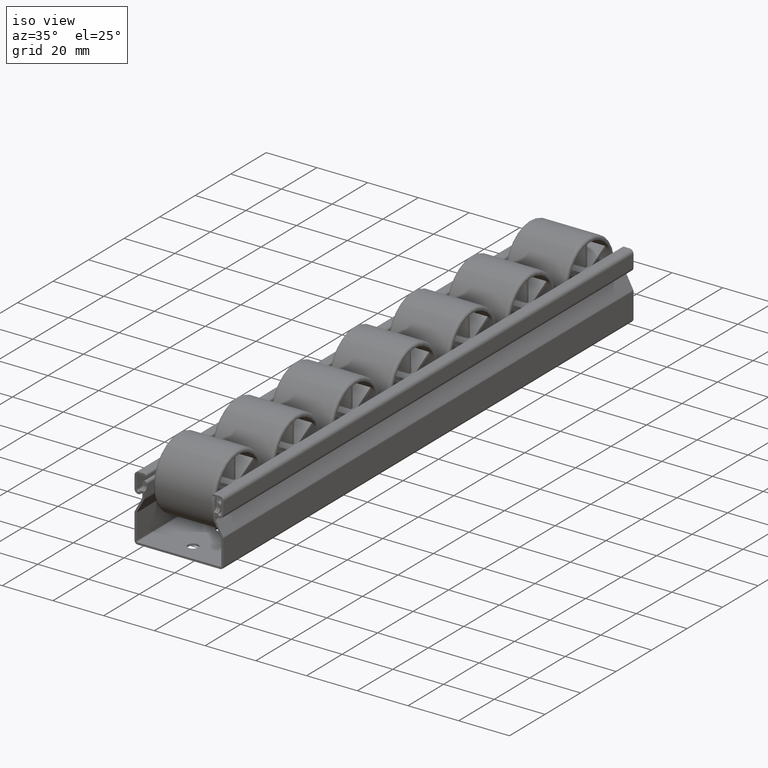
[diagram: clean part render]
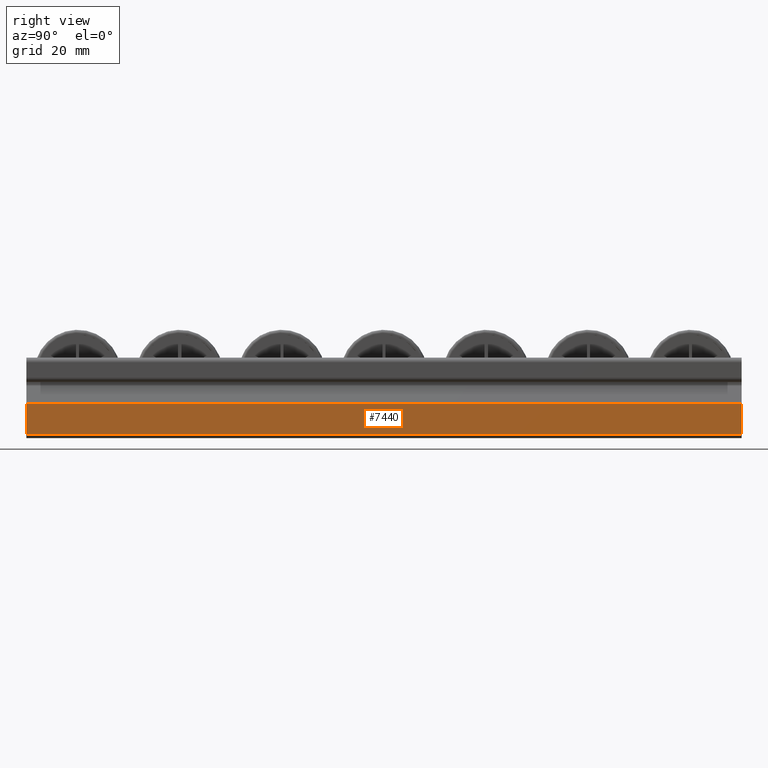
[diagram: tour spotlight — one face highlighted and labeled with its STEP entity id]
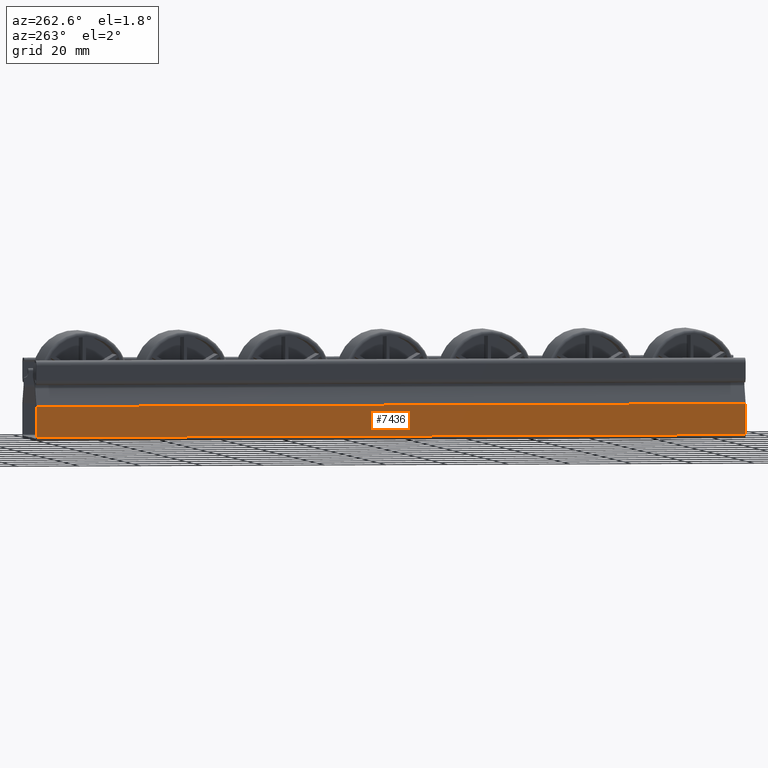
[diagram: tour spotlight — one face highlighted and labeled with its STEP entity id]
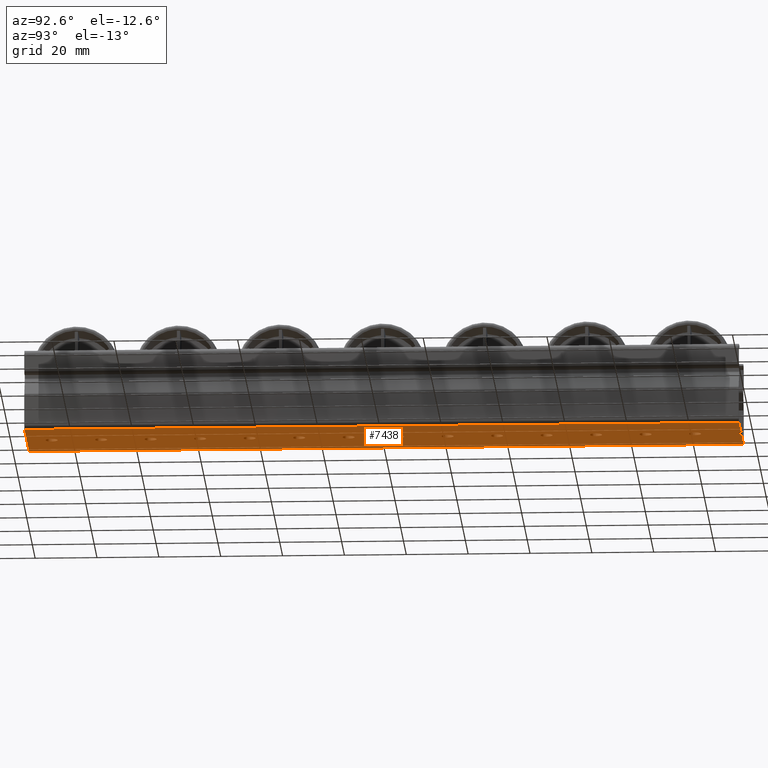
[diagram: tour spotlight — one face highlighted and labeled with its STEP entity id]
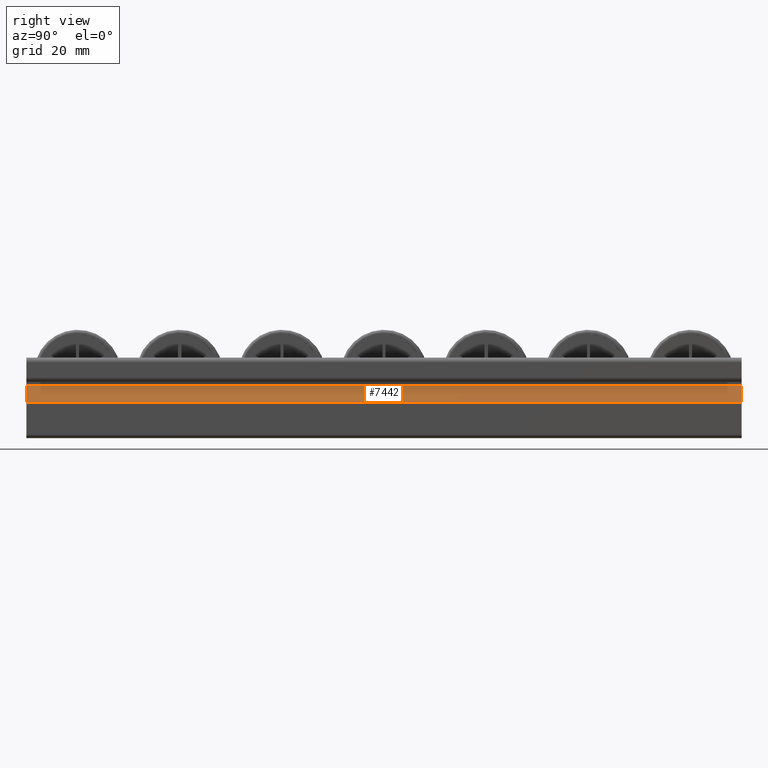
[diagram: tour spotlight — one face highlighted and labeled with its STEP entity id]
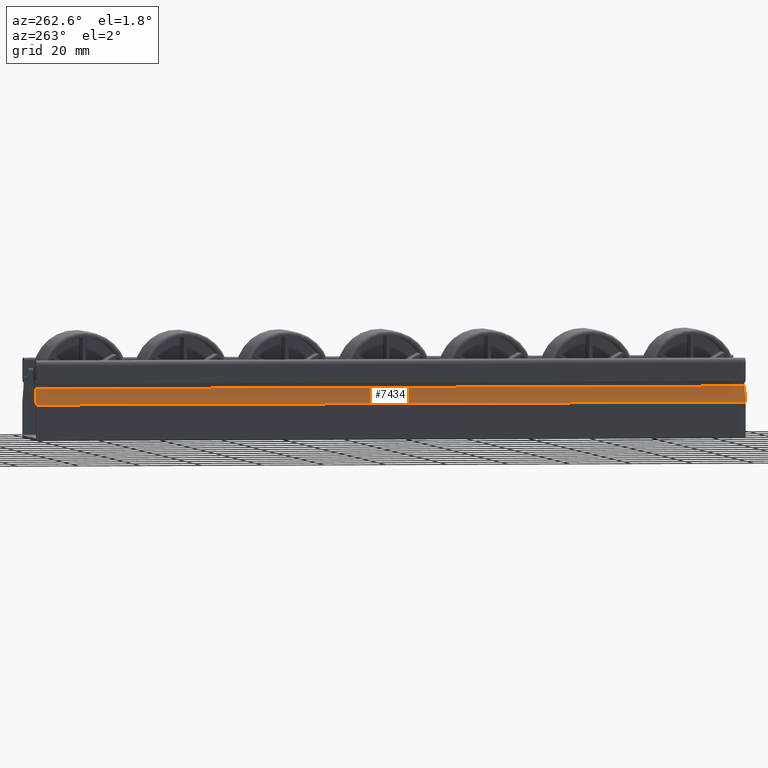
[diagram: tour spotlight — one face highlighted and labeled with its STEP entity id]
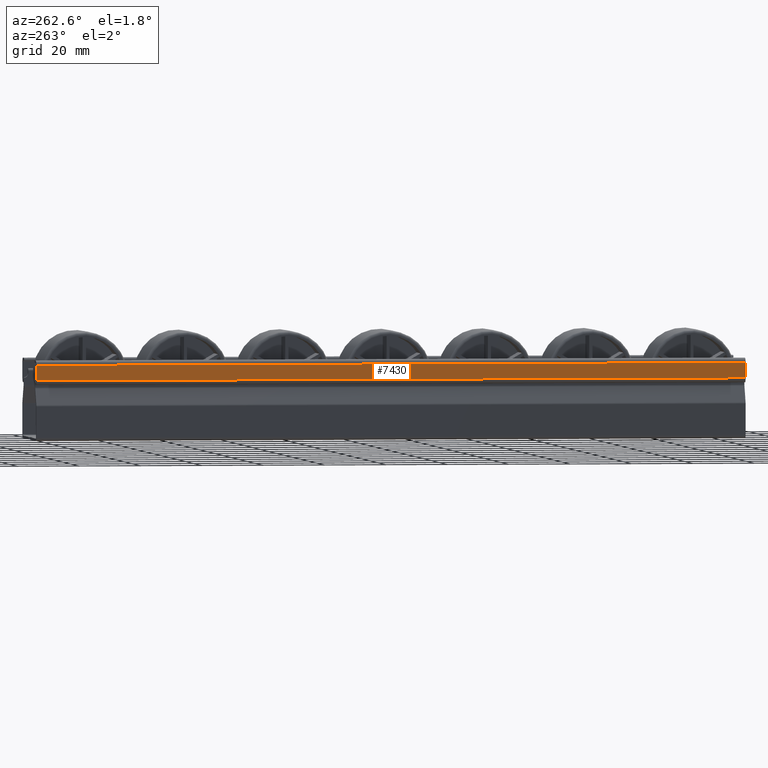
[diagram: tour spotlight — one face highlighted and labeled with its STEP entity id]
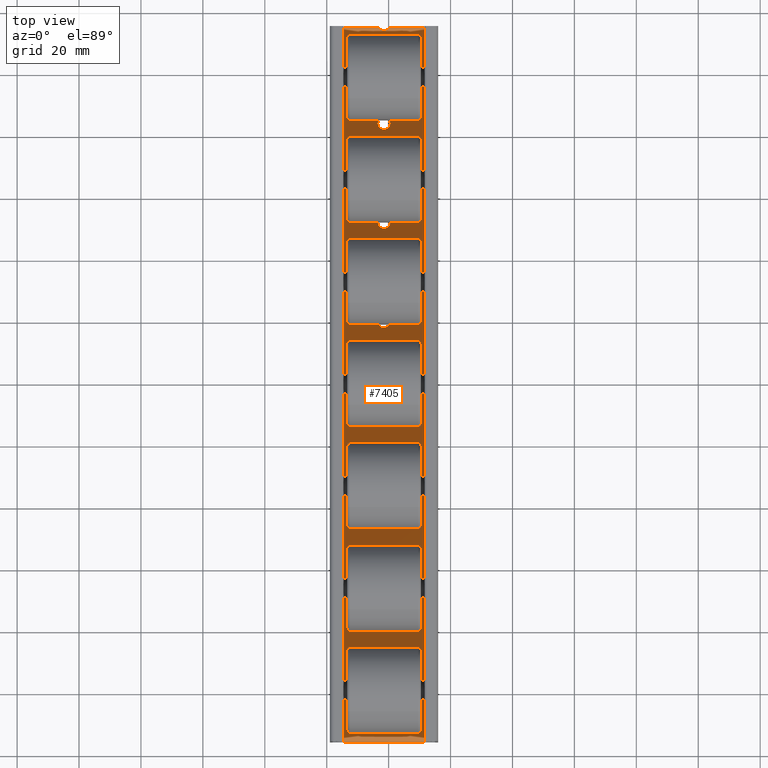
[diagram: tour spotlight — one face highlighted and labeled with its STEP entity id]
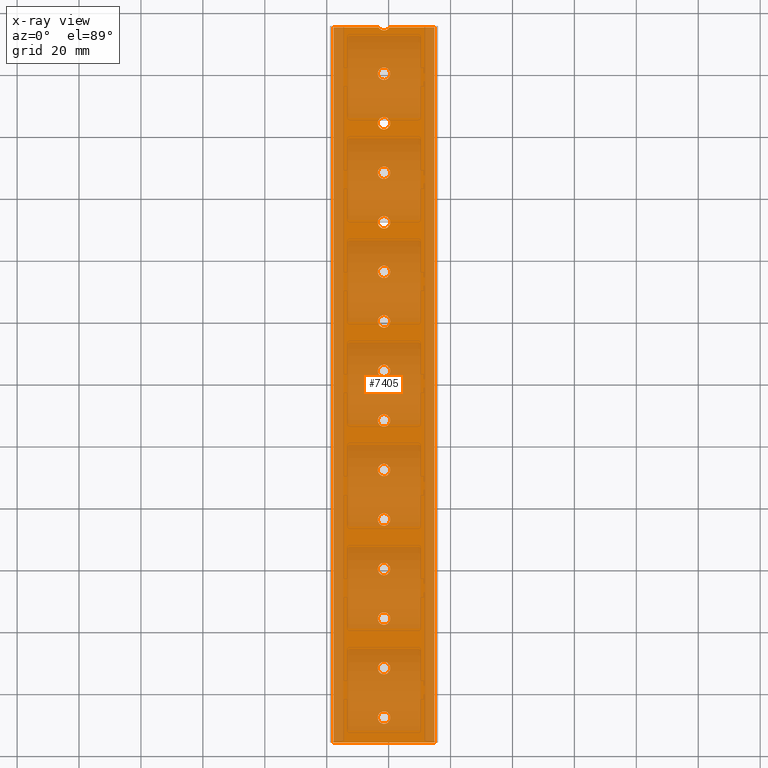
[diagram: x-ray of the same camera — body ghosted, this tour face saturated]
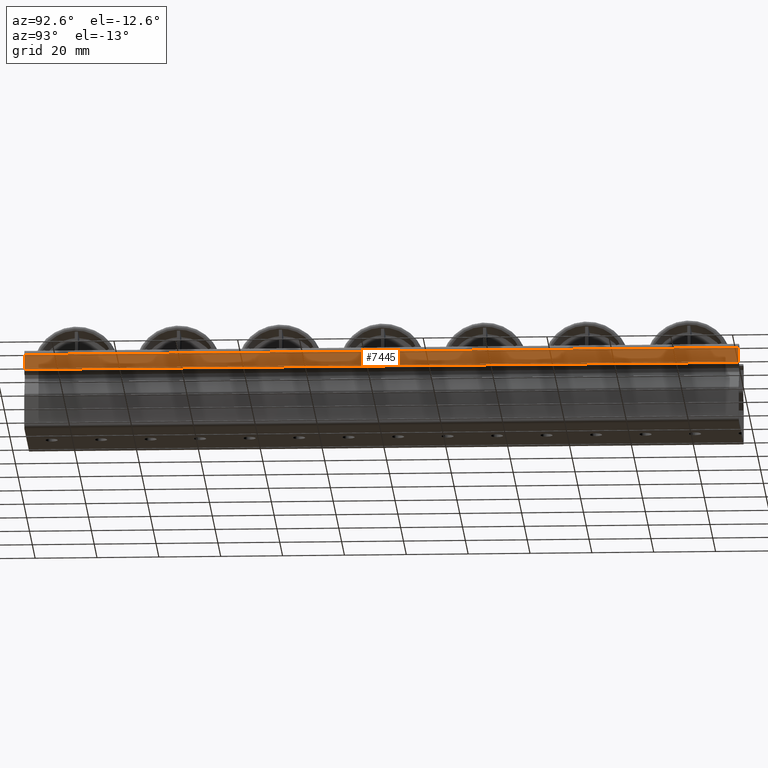
[diagram: tour spotlight — one face highlighted and labeled with its STEP entity id]
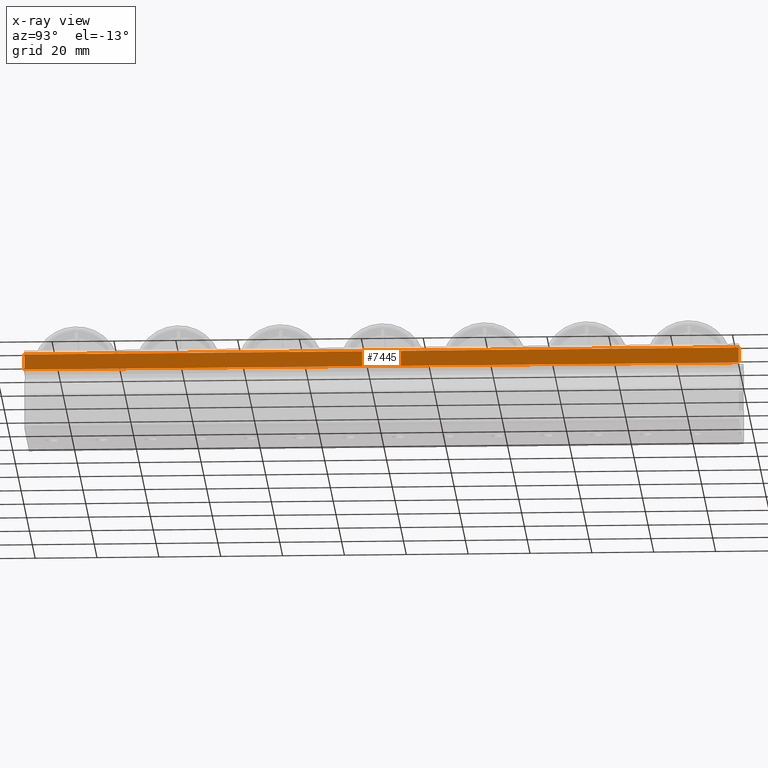
[diagram: x-ray of the same camera — body ghosted, this tour face saturated]
A machine part: a face-by-face anatomy tour. The part has 749 B-rep faces; the first image is the clean iso view, then the 8 largest visible faces are spotlighted one at a time (largest first), each with its STEP entity span.

Face 1 — right view, entity #7440. In plain terms, the highlighted planar face has unit normal (1, 0, 0).
Definition (entity closure, byte-faithful):
#572=FACE_OUTER_BOUND('',#973,.T.);
#973=EDGE_LOOP('',(#6601,#6602,#6603,#6604));
#1814=LINE('',#11824,#2510);
#2029=LINE('',#12270,#2725);
#2074=LINE('',#12461,#2770);
#2075=LINE('',#12463,#2771);
#2510=VECTOR('',#9427,10.);
#2725=VECTOR('',#9962,10.);
#2770=VECTOR('',#10195,231.);
#2771=VECTOR('',#10198,231.);
#3375=VERTEX_POINT('',#11821);
#3376=VERTEX_POINT('',#11823);
#3446=VERTEX_POINT('',#12267);
#3447=VERTEX_POINT('',#12269);
#4223=EDGE_CURVE('',#3375,#3376,#1814,.T.);
#4473=EDGE_CURVE('',#3446,#3447,#2029,.T.);
#4562=EDGE_CURVE('',#3446,#3376,#2074,.T.);
#4563=EDGE_CURVE('',#3447,#3375,#2075,.T.);
#6601=ORIENTED_EDGE('',*,*,#4473,.F.);
#6602=ORIENTED_EDGE('',*,*,#4562,.T.);
#6603=ORIENTED_EDGE('',*,*,#4223,.F.);
#6604=ORIENTED_EDGE('',*,*,#4563,.F.);
#7096=PLANE('',#8161);
#7440=ADVANCED_FACE('',(#572),#7096,.T.);
#8161=AXIS2_PLACEMENT_3D('',#12462,#10196,#10197);
#9427=DIRECTION('',(5.55111512312577E-16,-1.,0.));
#9962=DIRECTION('',(-5.55111512312577E-16,1.,0.));
#10195=DIRECTION('',(0.,0.,1.));
#10196=DIRECTION('center_axis',(-1.,-5.55111512312577E-16,0.));
#10197=DIRECTION('ref_axis',(5.32907051820075E-16,-1.,0.));
#10198=DIRECTION('',(0.,0.,1.));
#11821=CARTESIAN_POINT('',(-9.46144776632026,-0.466430168903642,231.));
#11823=CARTESIAN_POINT('',(-9.46144776632025,-10.4664301689037,231.));
#11824=CARTESIAN_POINT('',(-9.46144776632025,-10.4664301689037,231.));
#12267=CARTESIAN_POINT('',(-9.46144776632025,-10.4664301689037,0.));
#12269=CARTESIAN_POINT('',(-9.46144776632026,-0.466430168903642,0.));
#12270=CARTESIAN_POINT('',(-9.46144776632025,-10.4664301689037,0.));
#12461=CARTESIAN_POINT('',(-9.46144776632025,-10.4664301689037,0.));
#12462=CARTESIAN_POINT('Origin',(-9.46144776632026,-0.466430168903642,0.));
#12463=CARTESIAN_POINT('',(-9.46144776632026,-0.466430168903642,0.));

Face 2 — auxiliary view, entity #7436. In plain terms, the highlighted planar face has unit normal (-1, -0, -0).
Definition (entity closure, byte-faithful):
#568=FACE_OUTER_BOUND('',#955,.T.);
#955=EDGE_LOOP('',(#6569,#6570,#6571,#6572));
#2027=LINE('',#12262,#2723);
#2041=LINE('',#12385,#2737);
#2070=LINE('',#12453,#2766);
#2071=LINE('',#12455,#2767);
#2723=VECTOR('',#9956,10.);
#2737=VECTOR('',#10084,10.);
#2766=VECTOR('',#10183,231.);
#2767=VECTOR('',#10186,231.);
#3442=VERTEX_POINT('',#12259);
#3443=VERTEX_POINT('',#12261);
#3494=VERTEX_POINT('',#12382);
#3495=VERTEX_POINT('',#12384);
#4469=EDGE_CURVE('',#3442,#3443,#2027,.T.);
#4525=EDGE_CURVE('',#3494,#3495,#2041,.T.);
#4558=EDGE_CURVE('',#3442,#3495,#2070,.T.);
#4559=EDGE_CURVE('',#3443,#3494,#2071,.T.);
#6569=ORIENTED_EDGE('',*,*,#4469,.F.);
#6570=ORIENTED_EDGE('',*,*,#4558,.T.);
#6571=ORIENTED_EDGE('',*,*,#4525,.F.);
#6572=ORIENTED_EDGE('',*,*,#4559,.F.);
#7094=PLANE('',#8157);
#7436=ADVANCED_FACE('',(#568),#7094,.T.);
#8157=AXIS2_PLACEMENT_3D('',#12454,#10184,#10185);
#9956=DIRECTION('',(-1.77635683940025E-15,-1.,0.));
#10084=DIRECTION('',(1.77635683940025E-15,1.,0.));
#10183=DIRECTION('',(0.,0.,1.));
#10184=DIRECTION('center_axis',(1.,-1.77635683940025E-15,0.));
#10185=DIRECTION('ref_axis',(1.77635683940025E-15,1.,0.));
#10186=DIRECTION('',(0.,0.,1.));
#12259=CARTESIAN_POINT('',(25.5385522336796,-0.466430168903662,0.));
#12261=CARTESIAN_POINT('',(25.5385522336796,-10.4664301689037,0.));
#12262=CARTESIAN_POINT('',(25.5385522336796,-0.466430168903662,0.));
#12382=CARTESIAN_POINT('',(25.5385522336796,-10.4664301689037,231.));
#12384=CARTESIAN_POINT('',(25.5385522336796,-0.466430168903662,231.));
#12385=CARTESIAN_POINT('',(25.5385522336796,-0.466430168903662,231.));
#12453=CARTESIAN_POINT('',(25.5385522336796,-0.466430168903662,0.));
#12454=CARTESIAN_POINT('Origin',(25.5385522336796,-10.4664301689037,0.));
#12455=CARTESIAN_POINT('',(25.5385522336796,-10.4664301689037,0.));

Face 3 — auxiliary view, entity #7438. In plain terms, the highlighted planar face has unit normal (0, -0, -1).
Definition (entity closure, byte-faithful):
#96=FACE_BOUND('',#958,.T.);
#97=FACE_BOUND('',#959,.T.);
#98=FACE_BOUND('',#960,.T.);
#99=FACE_BOUND('',#961,.T.);
#100=FACE_BOUND('',#962,.T.);
#101=FACE_BOUND('',#963,.T.);
#102=FACE_BOUND('',#964,.T.);
#103=FACE_BOUND('',#965,.T.);
#104=FACE_BOUND('',#966,.T.);
#105=FACE_BOUND('',#967,.T.);
#106=FACE_BOUND('',#968,.T.);
#107=FACE_BOUND('',#969,.T.);
#108=FACE_BOUND('',#970,.T.);
#109=FACE_BOUND('',#971,.T.);
#570=FACE_OUTER_BOUND('',#957,.T.);
#957=EDGE_LOOP('',(#6577,#6578,#6579,#6580,#6581,#6582));
#958=EDGE_LOOP('',(#6583));
#959=EDGE_LOOP('',(#6584));
#960=EDGE_LOOP('',(#6585));
#961=EDGE_LOOP('',(#6586));
#962=EDGE_LOOP('',(#6587));
#963=EDGE_LOOP('',(#6588));
#964=EDGE_LOOP('',(#6589));
#965=EDGE_LOOP('',(#6590));
#966=EDGE_LOOP('',(#6591));
#967=EDGE_LOOP('',(#6592));
#968=EDGE_LOOP('',(#6593));
#969=EDGE_LOOP('',(#6594));
#970=EDGE_LOOP('',(#6595));
#971=EDGE_LOOP('',(#6596));
#1382=CIRCLE('',#8076,2.);
#1385=CIRCLE('',#8080,2.);
#1387=CIRCLE('',#8083,2.);
#1389=CIRCLE('',#8086,2.);
#1391=CIRCLE('',#8089,2.);
#1393=CIRCLE('',#8092,2.);
#1395=CIRCLE('',#8095,2.);
#1397=CIRCLE('',#8098,2.);
#1399=CIRCLE('',#8101,2.);
#1401=CIRCLE('',#8104,2.);
#1403=CIRCLE('',#8107,2.);
#1405=CIRCLE('',#8110,2.);
#1407=CIRCLE('',#8113,2.);
#1409=CIRCLE('',#8116,2.);
#1417=CIRCLE('',#8127,2.);
#1815=LINE('',#11828,#2511);
#2028=LINE('',#12266,#2724);
#2040=LINE('',#12381,#2736);
#2072=LINE('',#12457,#2768);
#2073=LINE('',#12459,#2769);
#2511=VECTOR('',#9430,14.545198360247);
#2724=VECTOR('',#9959,32.5544983356316);
#2736=VECTOR('',#10081,14.5451983602469);
#2768=VECTOR('',#10189,231.);
#2769=VECTOR('',#10192,231.);
#3377=VERTEX_POINT('',#11825);
#3378=VERTEX_POINT('',#11827);
#3444=VERTEX_POINT('',#12263);
#3445=VERTEX_POINT('',#12265);
#3460=VERTEX_POINT('',#12298);
#3463=VERTEX_POINT('',#12306);
#3465=VERTEX_POINT('',#12311);
#3467=VERTEX_POINT('',#12316);
#3469=VERTEX_POINT('',#12321);
#3471=VERTEX_POINT('',#12326);
#3473=VERTEX_POINT('',#12331);
#3475=VERTEX_POINT('',#12336);
#3477=VERTEX_POINT('',#12341);
#3479=VERTEX_POINT('',#12346);
#3481=VERTEX_POINT('',#12351);
#3483=VERTEX_POINT('',#12356);
#3485=VERTEX_POINT('',#12361);
#3487=VERTEX_POINT('',#12366);
#3493=VERTEX_POINT('',#12380);
#3499=VERTEX_POINT('',#12397);
#4225=EDGE_CURVE('',#3377,#3378,#1815,.T.);
#4471=EDGE_CURVE('',#3444,#3445,#2028,.T.);
#4488=EDGE_CURVE('',#3460,#3378,#1382,.T.);
#4492=EDGE_CURVE('',#3463,#3463,#1385,.T.);
#4494=EDGE_CURVE('',#3465,#3465,#1387,.T.);
#4496=EDGE_CURVE('',#3467,#3467,#1389,.T.);
#4498=EDGE_CURVE('',#3469,#3469,#1391,.T.);
#4500=EDGE_CURVE('',#3471,#3471,#1393,.T.);
#4502=EDGE_CURVE('',#3473,#3473,#1395,.T.);
#4504=EDGE_CURVE('',#3475,#3475,#1397,.T.);
#4506=EDGE_CURVE('',#3477,#3477,#1399,.T.);
#4508=EDGE_CURVE('',#3479,#3479,#1401,.T.);
#4510=EDGE_CURVE('',#3481,#3481,#1403,.T.);
#4512=EDGE_CURVE('',#3483,#3483,#1405,.T.);
#4514=EDGE_CURVE('',#3485,#3485,#1407,.T.);
#4516=EDGE_CURVE('',#3487,#3487,#1409,.T.);
#4523=EDGE_CURVE('',#3460,#3493,#2040,.T.);
#4532=EDGE_CURVE('',#3499,#3499,#1417,.T.);
#4560=EDGE_CURVE('',#3444,#3493,#2072,.T.);
#4561=EDGE_CURVE('',#3445,#3377,#2073,.T.);
#6577=ORIENTED_EDGE('',*,*,#4488,.T.);
#6578=ORIENTED_EDGE('',*,*,#4225,.F.);
#6579=ORIENTED_EDGE('',*,*,#4561,.F.);
#6580=ORIENTED_EDGE('',*,*,#4471,.F.);
#6581=ORIENTED_EDGE('',*,*,#4560,.T.);
#6582=ORIENTED_EDGE('',*,*,#4523,.F.);
#6583=ORIENTED_EDGE('',*,*,#4492,.T.);
#6584=ORIENTED_EDGE('',*,*,#4494,.T.);
#6585=ORIENTED_EDGE('',*,*,#4496,.T.);
#6586=ORIENTED_EDGE('',*,*,#4498,.T.);
#6587=ORIENTED_EDGE('',*,*,#4500,.T.);
#6588=ORIENTED_EDGE('',*,*,#4502,.T.);
#6589=ORIENTED_EDGE('',*,*,#4504,.T.);
#6590=ORIENTED_EDGE('',*,*,#4506,.T.);
#6591=ORIENTED_EDGE('',*,*,#4508,.T.);
#6592=ORIENTED_EDGE('',*,*,#4510,.T.);
#6593=ORIENTED_EDGE('',*,*,#4512,.T.);
#6594=ORIENTED_EDGE('',*,*,#4514,.T.);
#6595=ORIENTED_EDGE('',*,*,#4516,.T.);
#6596=ORIENTED_EDGE('',*,*,#4532,.T.);
#7095=PLANE('',#8159);
#7438=ADVANCED_FACE('',(#570,#96,#97,#98,#99,#100,#101,#102,#103,#104,#105,
#106,#107,#108,#109),#7095,.T.);
#8076=AXIS2_PLACEMENT_3D('',#12299,#9987,#9988);
#8080=AXIS2_PLACEMENT_3D('',#12307,#9996,#9997);
#8083=AXIS2_PLACEMENT_3D('',#12312,#10002,#10003);
#8086=AXIS2_PLACEMENT_3D('',#12317,#10008,#10009);
#8089=AXIS2_PLACEMENT_3D('',#12322,#10014,#10015);
#8092=AXIS2_PLACEMENT_3D('',#12327,#10020,#10021);
#8095=AXIS2_PLACEMENT_3D('',#12332,#10026,#10027);
#8098=AXIS2_PLACEMENT_3D('',#12337,#10032,#10033);
#8101=AXIS2_PLACEMENT_3D('',#12342,#10038,#10039);
#8104=AXIS2_PLACEMENT_3D('',#12347,#10044,#10045);
#8107=AXIS2_PLACEMENT_3D('',#12352,#10050,#10051);
#8110=AXIS2_PLACEMENT_3D('',#12357,#10056,#10057);
#8113=AXIS2_PLACEMENT_3D('',#12362,#10062,#10063);
#8116=AXIS2_PLACEMENT_3D('',#12367,#10068,#10069);
#8127=AXIS2_PLACEMENT_3D('',#12398,#10098,#10099);
#8159=AXIS2_PLACEMENT_3D('',#12458,#10190,#10191);
#9430=DIRECTION('',(1.,6.82070424295246E-16,0.));
#9959=DIRECTION('',(-1.,-6.82070424295246E-16,0.));
#9987=DIRECTION('center_axis',(-6.82070424295246E-16,1.,0.));
#9988=DIRECTION('ref_axis',(1.,6.82070424295246E-16,0.));
#9996=DIRECTION('center_axis',(-6.82070424295246E-16,1.,0.));
#9997=DIRECTION('ref_axis',(1.,6.82070424295246E-16,0.));
#10002=DIRECTION('center_axis',(-6.82070424295246E-16,1.,0.));
#10003=DIRECTION('ref_axis',(1.,6.82070424295246E-16,0.));
#10008=DIRECTION('center_axis',(-6.82070424295246E-16,1.,0.));
#10009=DIRECTION('ref_axis',(1.,6.82070424295246E-16,0.));
#10014=DIRECTION('center_axis',(-6.82070424295246E-16,1.,0.));
#10015=DIRECTION('ref_axis',(1.,6.82070424295246E-16,0.));
#10020=DIRECTION('center_axis',(-6.82070424295246E-16,1.,0.));
#10021=DIRECTION('ref_axis',(1.,6.82070424295246E-16,0.));
#10026=DIRECTION('center_axis',(-6.82070424295246E-16,1.,0.));
#10027=DIRECTION('ref_axis',(1.,6.82070424295246E-16,0.));
#10032=DIRECTION('center_axis',(-6.82070424295246E-16,1.,0.));
#10033=DIRECTION('ref_axis',(1.,6.82070424295246E-16,0.));
#10038=DIRECTION('center_axis',(-6.82070424295246E-16,1.,0.));
#10039=DIRECTION('ref_axis',(1.,6.82070424295246E-16,0.));
#10044=DIRECTION('center_axis',(-6.82070424295246E-16,1.,0.));
#10045=DIRECTION('ref_axis',(1.,6.82070424295246E-16,0.));
#10050=DIRECTION('center_axis',(-6.82070424295246E-16,1.,0.));
#10051=DIRECTION('ref_axis',(1.,6.82070424295246E-16,0.));
#10056=DIRECTION('center_axis',(-6.82070424295246E-16,1.,0.));
#10057=DIRECTION('ref_axis',(1.,6.82070424295246E-16,0.));
#10062=DIRECTION('center_axis',(-6.82070424295246E-16,1.,0.));
#10063=DIRECTION('ref_axis',(1.,6.82070424295246E-16,0.));
#10068=DIRECTION('center_axis',(-6.82070424295246E-16,1.,0.));
#10069=DIRECTION('ref_axis',(1.,6.82070424295246E-16,0.));
#10081=DIRECTION('',(1.,6.82070424295246E-16,0.));
#10098=DIRECTION('center_axis',(-6.82070424295246E-16,1.,0.));
#10099=DIRECTION('ref_axis',(1.,6.82070424295246E-16,0.));
#10189=DIRECTION('',(0.,0.,1.));
#10190=DIRECTION('center_axis',(6.82070424295246E-16,-1.,0.));
#10191=DIRECTION('ref_axis',(1.,7.105427357601E-16,0.));
#10192=DIRECTION('',(0.,0.,1.));
#11825=CARTESIAN_POINT('',(-8.23869693413613,-11.6891810010878,231.));
#11827=CARTESIAN_POINT('',(6.30650142611088,-11.6891810010878,231.));
#11828=CARTESIAN_POINT('',(24.3158014014955,-11.6891810010878,231.));
#12263=CARTESIAN_POINT('',(24.3158014014955,-11.6891810010878,0.));
#12265=CARTESIAN_POINT('',(-8.23869693413613,-11.6891810010878,0.));
#12266=CARTESIAN_POINT('',(24.3158014014955,-11.6891810010878,0.));
#12298=CARTESIAN_POINT('',(9.77060304124862,-11.6891810010878,231.));
#12299=CARTESIAN_POINT('Origin',(8.03855223367975,-11.6891810010878,232.));
#12306=CARTESIAN_POINT('',(10.0385522336798,-11.6891810010878,216.));
#12307=CARTESIAN_POINT('Origin',(8.03855223367975,-11.6891810010878,216.));
#12311=CARTESIAN_POINT('',(10.0385522336798,-11.6891810010878,200.));
#12312=CARTESIAN_POINT('Origin',(8.03855223367975,-11.6891810010878,200.));
#12316=CARTESIAN_POINT('',(10.0385522336798,-11.6891810010878,184.));
#12317=CARTESIAN_POINT('Origin',(8.03855223367975,-11.6891810010878,184.));
#12321=CARTESIAN_POINT('',(10.0385522336798,-11.6891810010878,168.));
#12322=CARTESIAN_POINT('Origin',(8.03855223367975,-11.6891810010878,168.));
#12326=CARTESIAN_POINT('',(10.0385522336798,-11.6891810010878,152.));
#12327=CARTESIAN_POINT('Origin',(8.03855223367975,-11.6891810010878,152.));
#12331=CARTESIAN_POINT('',(10.0385522336798,-11.6891810010878,136.));
#12332=CARTESIAN_POINT('Origin',(8.03855223367975,-11.6891810010878,136.));
#12336=CARTESIAN_POINT('',(10.0385522336798,-11.6891810010878,120.));
#12337=CARTESIAN_POINT('Origin',(8.03855223367975,-11.6891810010878,120.));
#12341=CARTESIAN_POINT('',(10.0385522336798,-11.6891810010878,104.));
#12342=CARTESIAN_POINT('Origin',(8.03855223367975,-11.6891810010878,104.));
#12346=CARTESIAN_POINT('',(10.0385522336798,-11.6891810010878,88.));
#12347=CARTESIAN_POINT('Origin',(8.03855223367975,-11.6891810010878,88.));
#12351=CARTESIAN_POINT('',(10.0385522336798,-11.6891810010878,72.));
#12352=CARTESIAN_POINT('Origin',(8.03855223367975,-11.6891810010878,72.));
#12356=CARTESIAN_POINT('',(10.0385522336798,-11.6891810010878,56.));
#12357=CARTESIAN_POINT('Origin',(8.03855223367975,-11.6891810010878,56.));
#12361=CARTESIAN_POINT('',(10.0385522336798,-11.6891810010878,40.));
#12362=CARTESIAN_POINT('Origin',(8.03855223367975,-11.6891810010878,40.));
#12366=CARTESIAN_POINT('',(10.0385522336798,-11.6891810010878,24.));
#12367=CARTESIAN_POINT('Origin',(8.03855223367975,-11.6891810010878,24.));
#12380=CARTESIAN_POINT('',(24.3158014014955,-11.6891810010878,231.));
#12381=CARTESIAN_POINT('',(24.3158014014955,-11.6891810010878,231.));
#12397=CARTESIAN_POINT('',(10.0385522336798,-11.6891810010878,8.));
#12398=CARTESIAN_POINT('Origin',(8.03855223367975,-11.6891810010878,8.));
#12457=CARTESIAN_POINT('',(24.3158014014955,-11.6891810010878,0.));
#12458=CARTESIAN_POINT('Origin',(-8.23869693413613,-11.6891810010878,0.));
#12459=CARTESIAN_POINT('',(-8.23869693413613,-11.6891810010878,0.));

Face 4 — right view, entity #7442. In plain terms, the highlighted planar face has unit normal (0.8781, 0, 0.4785).
Definition (entity closure, byte-faithful):
#574=FACE_OUTER_BOUND('',#975,.T.);
#975=EDGE_LOOP('',(#6609,#6610,#6611,#6612));
#1813=LINE('',#11820,#2509);
#2030=LINE('',#12274,#2726);
#2076=LINE('',#12465,#2772);
#2077=LINE('',#12467,#2773);
#2509=VECTOR('',#9424,5.86498722588009);
#2726=VECTOR('',#9965,5.86498722588009);
#2772=VECTOR('',#10201,231.);
#2773=VECTOR('',#10204,231.);
#3373=VERTEX_POINT('',#11817);
#3374=VERTEX_POINT('',#11819);
#3448=VERTEX_POINT('',#12271);
#3449=VERTEX_POINT('',#12273);
#4221=EDGE_CURVE('',#3373,#3374,#1813,.T.);
#4475=EDGE_CURVE('',#3448,#3449,#2030,.T.);
#4564=EDGE_CURVE('',#3448,#3374,#2076,.T.);
#4565=EDGE_CURVE('',#3449,#3373,#2077,.T.);
#6609=ORIENTED_EDGE('',*,*,#4475,.F.);
#6610=ORIENTED_EDGE('',*,*,#4564,.T.);
#6611=ORIENTED_EDGE('',*,*,#4221,.F.);
#6612=ORIENTED_EDGE('',*,*,#4565,.F.);
#7097=PLANE('',#8163);
#7442=ADVANCED_FACE('',(#574),#7097,.T.);
#8163=AXIS2_PLACEMENT_3D('',#12466,#10202,#10203);
#9424=DIRECTION('',(-0.478468182817643,-0.878104890107772,0.));
#9965=DIRECTION('',(0.478468182817643,0.878104890107772,0.));
#10201=DIRECTION('',(0.,0.,1.));
#10202=DIRECTION('center_axis',(-0.878104890107772,0.478468182817643,0.));
#10203=DIRECTION('ref_axis',(-0.478468182817643,-0.878104890107772,0.));
#10204=DIRECTION('',(0.,0.,1.));
#11817=CARTESIAN_POINT('',(-6.53334287621249,5.16211197737892,231.));
#11819=CARTESIAN_POINT('',(-9.33955265642803,0.0120380139139908,231.));
#11820=CARTESIAN_POINT('',(-9.33955265642803,0.0120380139139913,231.));
#12271=CARTESIAN_POINT('',(-9.33955265642803,0.0120380139139913,0.));
#12273=CARTESIAN_POINT('',(-6.53334287621249,5.16211197737892,0.));
#12274=CARTESIAN_POINT('',(-9.33955265642803,0.0120380139139913,0.));
#12465=CARTESIAN_POINT('',(-9.33955265642803,0.0120380139139913,0.));
#12466=CARTESIAN_POINT('Origin',(-6.53334287621249,5.16211197737892,0.));
#12467=CARTESIAN_POINT('',(-6.53334287621249,5.16211197737892,0.));

Face 5 — auxiliary view, entity #7434. In plain terms, the highlighted planar face has unit normal (-0.8781, 0, 0.4785).
Definition (entity closure, byte-faithful):
#566=FACE_OUTER_BOUND('',#953,.T.);
#953=EDGE_LOOP('',(#6561,#6562,#6563,#6564));
#2026=LINE('',#12258,#2722);
#2042=LINE('',#12389,#2738);
#2068=LINE('',#12449,#2764);
#2069=LINE('',#12451,#2765);
#2722=VECTOR('',#9953,5.86498722588009);
#2738=VECTOR('',#10087,5.86498722588009);
#2764=VECTOR('',#10177,231.);
#2765=VECTOR('',#10180,231.);
#3440=VERTEX_POINT('',#12255);
#3441=VERTEX_POINT('',#12257);
#3496=VERTEX_POINT('',#12386);
#3497=VERTEX_POINT('',#12388);
#4467=EDGE_CURVE('',#3440,#3441,#2026,.T.);
#4527=EDGE_CURVE('',#3496,#3497,#2042,.T.);
#4556=EDGE_CURVE('',#3440,#3497,#2068,.T.);
#4557=EDGE_CURVE('',#3441,#3496,#2069,.T.);
#6561=ORIENTED_EDGE('',*,*,#4467,.F.);
#6562=ORIENTED_EDGE('',*,*,#4556,.T.);
#6563=ORIENTED_EDGE('',*,*,#4527,.F.);
#6564=ORIENTED_EDGE('',*,*,#4557,.F.);
#7093=PLANE('',#8155);
#7434=ADVANCED_FACE('',(#566),#7093,.T.);
#8155=AXIS2_PLACEMENT_3D('',#12450,#10178,#10179);
#9953=DIRECTION('',(0.478468182817643,-0.878104890107772,0.));
#10087=DIRECTION('',(-0.478468182817643,0.878104890107772,0.));
#10177=DIRECTION('',(0.,0.,1.));
#10178=DIRECTION('center_axis',(0.878104890107772,0.478468182817643,0.));
#10179=DIRECTION('ref_axis',(-0.478468182817642,0.878104890107772,0.));
#10180=DIRECTION('',(0.,0.,1.));
#12255=CARTESIAN_POINT('',(22.6104473435719,5.1621119773789,0.));
#12257=CARTESIAN_POINT('',(25.4166571237874,0.0120380139139718,0.));
#12258=CARTESIAN_POINT('',(22.6104473435719,5.1621119773789,0.));
#12386=CARTESIAN_POINT('',(25.4166571237874,0.0120380139139709,231.));
#12388=CARTESIAN_POINT('',(22.6104473435719,5.1621119773789,231.));
#12389=CARTESIAN_POINT('',(22.6104473435719,5.1621119773789,231.));
#12449=CARTESIAN_POINT('',(22.6104473435719,5.1621119773789,0.));
#12450=CARTESIAN_POINT('Origin',(25.4166571237874,0.012038013913972,0.));
#12451=CARTESIAN_POINT('',(25.4166571237874,0.0120380139139718,0.));

Face 6 — auxiliary view, entity #7430. In plain terms, the highlighted planar face has unit normal (-1, -0, -0).
Definition (entity closure, byte-faithful):
#562=FACE_OUTER_BOUND('',#949,.T.);
#949=EDGE_LOOP('',(#6530,#6531,#6532,#6533));
#1821=LINE('',#11848,#2517);
#2025=LINE('',#12252,#2721);
#2065=LINE('',#12442,#2761);
#2066=LINE('',#12444,#2762);
#2517=VECTOR('',#9446,4.925);
#2721=VECTOR('',#9946,4.925);
#2761=VECTOR('',#10166,231.);
#2762=VECTOR('',#10169,231.);
#3386=VERTEX_POINT('',#11845);
#3387=VERTEX_POINT('',#11847);
#3438=VERTEX_POINT('',#12249);
#3439=VERTEX_POINT('',#12251);
#4235=EDGE_CURVE('',#3386,#3387,#1821,.T.);
#4464=EDGE_CURVE('',#3438,#3439,#2025,.T.);
#4553=EDGE_CURVE('',#3438,#3387,#2065,.T.);
#4554=EDGE_CURVE('',#3439,#3386,#2066,.T.);
#6530=ORIENTED_EDGE('',*,*,#4464,.F.);
#6531=ORIENTED_EDGE('',*,*,#4553,.T.);
#6532=ORIENTED_EDGE('',*,*,#4235,.F.);
#6533=ORIENTED_EDGE('',*,*,#4554,.F.);
#7091=PLANE('',#8151);
#7430=ADVANCED_FACE('',(#562),#7091,.T.);
#8151=AXIS2_PLACEMENT_3D('',#12443,#10167,#10168);
#9446=DIRECTION('',(1.80340795878198E-15,1.,0.));
#9946=DIRECTION('',(-1.80340795878198E-15,-1.,0.));
#10166=DIRECTION('',(0.,0.,1.));
#10167=DIRECTION('center_axis',(1.,-1.80340795878198E-15,0.));
#10168=DIRECTION('ref_axis',(1.77635683940025E-15,1.,0.));
#10169=DIRECTION('',(0.,0.,1.));
#11845=CARTESIAN_POINT('',(25.5385522336796,7.88581899891219,231.));
#11847=CARTESIAN_POINT('',(25.5385522336796,12.8108189989122,231.));
#11848=CARTESIAN_POINT('',(25.5385522336796,12.8108189989122,231.));
#12249=CARTESIAN_POINT('',(25.5385522336796,12.8108189989122,0.));
#12251=CARTESIAN_POINT('',(25.5385522336796,7.88581899891219,0.));
#12252=CARTESIAN_POINT('',(25.5385522336796,12.8108189989122,0.));
#12442=CARTESIAN_POINT('',(25.5385522336796,12.8108189989122,0.));
#12443=CARTESIAN_POINT('Origin',(25.5385522336796,7.88581899891219,0.));
#12444=CARTESIAN_POINT('',(25.5385522336796,7.88581899891219,0.));

Face 7 — top view, entity #7405. An x-ray twin of the same camera follows (body ghosted, this face saturated) — the face is partly hidden behind the body. In plain terms, the highlighted planar face has unit normal (0, 0, 1).
Definition (entity closure, byte-faithful):
#81=FACE_BOUND('',#910,.T.);
#82=FACE_BOUND('',#911,.T.);
#83=FACE_BOUND('',#912,.T.);
#84=FACE_BOUND('',#913,.T.);
#85=FACE_BOUND('',#914,.T.);
#86=FACE_BOUND('',#915,.T.);
#87=FACE_BOUND('',#916,.T.);
#88=FACE_BOUND('',#917,.T.);
#89=FACE_BOUND('',#918,.T.);
#90=FACE_BOUND('',#919,.T.);
#91=FACE_BOUND('',#920,.T.);
#92=FACE_BOUND('',#921,.T.);
#93=FACE_BOUND('',#922,.T.);
#94=FACE_BOUND('',#923,.T.);
#537=FACE_OUTER_BOUND('',#909,.T.);
#909=EDGE_LOOP('',(#6390,#6391,#6392,#6393,#6394,#6395));
#910=EDGE_LOOP('',(#6396));
#911=EDGE_LOOP('',(#6397));
#912=EDGE_LOOP('',(#6398));
#913=EDGE_LOOP('',(#6399));
#914=EDGE_LOOP('',(#6400));
#915=EDGE_LOOP('',(#6401));
#916=EDGE_LOOP('',(#6402));
#917=EDGE_LOOP('',(#6403));
#918=EDGE_LOOP('',(#6404));
#919=EDGE_LOOP('',(#6405));
#920=EDGE_LOOP('',(#6406));
#921=EDGE_LOOP('',(#6407));
#922=EDGE_LOOP('',(#6408));
#923=EDGE_LOOP('',(#6409));
#1383=CIRCLE('',#8077,2.);
#1384=CIRCLE('',#8079,2.);
#1386=CIRCLE('',#8082,2.);
#1388=CIRCLE('',#8085,2.);
#1390=CIRCLE('',#8088,2.);
#1392=CIRCLE('',#8091,2.);
#1394=CIRCLE('',#8094,2.);
#1396=CIRCLE('',#8097,2.);
#1398=CIRCLE('',#8100,2.);
#1400=CIRCLE('',#8103,2.);
#1402=CIRCLE('',#8106,2.);
#1404=CIRCLE('',#8109,2.);
#1406=CIRCLE('',#8112,2.);
#1408=CIRCLE('',#8115,2.);
#1416=CIRCLE('',#8125,2.);
#1817=LINE('',#11832,#2513);
#2033=LINE('',#12287,#2729);
#2039=LINE('',#12379,#2735);
#2043=LINE('',#12392,#2739);
#2044=LINE('',#12393,#2740);
#2513=VECTOR('',#9432,14.545198360247);
#2729=VECTOR('',#9976,32.5544983356316);
#2735=VECTOR('',#10080,14.5451983602469);
#2739=VECTOR('',#10092,231.);
#2740=VECTOR('',#10093,231.);
#3379=VERTEX_POINT('',#11829);
#3380=VERTEX_POINT('',#11831);
#3454=VERTEX_POINT('',#12284);
#3455=VERTEX_POINT('',#12286);
#3461=VERTEX_POINT('',#12300);
#3462=VERTEX_POINT('',#12304);
#3464=VERTEX_POINT('',#12309);
#3466=VERTEX_POINT('',#12314);
#3468=VERTEX_POINT('',#12319);
#3470=VERTEX_POINT('',#12324);
#3472=VERTEX_POINT('',#12329);
#3474=VERTEX_POINT('',#12334);
#3476=VERTEX_POINT('',#12339);
#3478=VERTEX_POINT('',#12344);
#3480=VERTEX_POINT('',#12349);
#3482=VERTEX_POINT('',#12354);
#3484=VERTEX_POINT('',#12359);
#3486=VERTEX_POINT('',#12364);
#3492=VERTEX_POINT('',#12377);
#3498=VERTEX_POINT('',#12394);
#4227=EDGE_CURVE('',#3379,#3380,#1817,.T.);
#4482=EDGE_CURVE('',#3454,#3455,#2033,.T.);
#4490=EDGE_CURVE('',#3379,#3461,#1383,.T.);
#4491=EDGE_CURVE('',#3462,#3462,#1384,.T.);
#4493=EDGE_CURVE('',#3464,#3464,#1386,.T.);
#4495=EDGE_CURVE('',#3466,#3466,#1388,.T.);
#4497=EDGE_CURVE('',#3468,#3468,#1390,.T.);
#4499=EDGE_CURVE('',#3470,#3470,#1392,.T.);
#4501=EDGE_CURVE('',#3472,#3472,#1394,.T.);
#4503=EDGE_CURVE('',#3474,#3474,#1396,.T.);
#4505=EDGE_CURVE('',#3476,#3476,#1398,.T.);
#4507=EDGE_CURVE('',#3478,#3478,#1400,.T.);
#4509=EDGE_CURVE('',#3480,#3480,#1402,.T.);
#4511=EDGE_CURVE('',#3482,#3482,#1404,.T.);
#4513=EDGE_CURVE('',#3484,#3484,#1406,.T.);
#4515=EDGE_CURVE('',#3486,#3486,#1408,.T.);
#4522=EDGE_CURVE('',#3492,#3461,#2039,.T.);
#4529=EDGE_CURVE('',#3455,#3492,#2043,.T.);
#4530=EDGE_CURVE('',#3454,#3380,#2044,.T.);
#4531=EDGE_CURVE('',#3498,#3498,#1416,.T.);
#6390=ORIENTED_EDGE('',*,*,#4490,.T.);
#6391=ORIENTED_EDGE('',*,*,#4522,.F.);
#6392=ORIENTED_EDGE('',*,*,#4529,.F.);
#6393=ORIENTED_EDGE('',*,*,#4482,.F.);
#6394=ORIENTED_EDGE('',*,*,#4530,.T.);
#6395=ORIENTED_EDGE('',*,*,#4227,.F.);
#6396=ORIENTED_EDGE('',*,*,#4531,.T.);
#6397=ORIENTED_EDGE('',*,*,#4515,.T.);
#6398=ORIENTED_EDGE('',*,*,#4513,.T.);
#6399=ORIENTED_EDGE('',*,*,#4511,.T.);
#6400=ORIENTED_EDGE('',*,*,#4509,.T.);
#6401=ORIENTED_EDGE('',*,*,#4507,.T.);
#6402=ORIENTED_EDGE('',*,*,#4505,.T.);
#6403=ORIENTED_EDGE('',*,*,#4503,.T.);
#6404=ORIENTED_EDGE('',*,*,#4501,.T.);
#6405=ORIENTED_EDGE('',*,*,#4499,.T.);
#6406=ORIENTED_EDGE('',*,*,#4497,.T.);
#6407=ORIENTED_EDGE('',*,*,#4495,.T.);
#6408=ORIENTED_EDGE('',*,*,#4493,.T.);
#6409=ORIENTED_EDGE('',*,*,#4491,.T.);
#7080=PLANE('',#8124);
#7405=ADVANCED_FACE('',(#537,#81,#82,#83,#84,#85,#86,#87,#88,#89,#90,#91,
#92,#93,#94),#7080,.T.);
#8077=AXIS2_PLACEMENT_3D('',#12302,#9990,#9991);
#8079=AXIS2_PLACEMENT_3D('',#12305,#9994,#9995);
#8082=AXIS2_PLACEMENT_3D('',#12310,#10000,#10001);
#8085=AXIS2_PLACEMENT_3D('',#12315,#10006,#10007);
#8088=AXIS2_PLACEMENT_3D('',#12320,#10012,#10013);
#8091=AXIS2_PLACEMENT_3D('',#12325,#10018,#10019);
#8094=AXIS2_PLACEMENT_3D('',#12330,#10024,#10025);
#8097=AXIS2_PLACEMENT_3D('',#12335,#10030,#10031);
#8100=AXIS2_PLACEMENT_3D('',#12340,#10036,#10037);
#8103=AXIS2_PLACEMENT_3D('',#12345,#10042,#10043);
#8106=AXIS2_PLACEMENT_3D('',#12350,#10048,#10049);
#8109=AXIS2_PLACEMENT_3D('',#12355,#10054,#10055);
#8112=AXIS2_PLACEMENT_3D('',#12360,#10060,#10061);
#8115=AXIS2_PLACEMENT_3D('',#12365,#10066,#10067);
#8124=AXIS2_PLACEMENT_3D('',#12391,#10090,#10091);
#8125=AXIS2_PLACEMENT_3D('',#12395,#10094,#10095);
#9432=DIRECTION('',(-1.,-2.38724648503336E-15,0.));
#9976=DIRECTION('',(1.,2.38724648503336E-15,0.));
#9990=DIRECTION('center_axis',(2.38724648503336E-15,-1.,0.));
#9991=DIRECTION('ref_axis',(1.,6.82070424295246E-16,0.));
#9994=DIRECTION('center_axis',(2.38724648503336E-15,-1.,0.));
#9995=DIRECTION('ref_axis',(1.,6.82070424295246E-16,0.));
#10000=DIRECTION('center_axis',(2.38724648503336E-15,-1.,0.));
#10001=DIRECTION('ref_axis',(1.,6.82070424295246E-16,0.));
#10006=DIRECTION('center_axis',(2.38724648503336E-15,-1.,0.));
#10007=DIRECTION('ref_axis',(1.,6.82070424295246E-16,0.));
#10012=DIRECTION('center_axis',(2.38724648503336E-15,-1.,0.));
#10013=DIRECTION('ref_axis',(1.,6.82070424295246E-16,0.));
#10018=DIRECTION('center_axis',(2.38724648503336E-15,-1.,0.));
#10019=DIRECTION('ref_axis',(1.,6.82070424295246E-16,0.));
#10024=DIRECTION('center_axis',(2.38724648503336E-15,-1.,0.));
#10025=DIRECTION('ref_axis',(1.,6.82070424295246E-16,0.));
#10030=DIRECTION('center_axis',(2.38724648503336E-15,-1.,0.));
#10031=DIRECTION('ref_axis',(1.,6.82070424295246E-16,0.));
#10036=DIRECTION('center_axis',(2.38724648503336E-15,-1.,0.));
#10037=DIRECTION('ref_axis',(1.,6.82070424295246E-16,0.));
#10042=DIRECTION('center_axis',(2.38724648503336E-15,-1.,0.));
#10043=DIRECTION('ref_axis',(1.,6.82070424295246E-16,0.));
#10048=DIRECTION('center_axis',(2.38724648503336E-15,-1.,0.));
#10049=DIRECTION('ref_axis',(1.,6.82070424295246E-16,0.));
#10054=DIRECTION('center_axis',(2.38724648503336E-15,-1.,0.));
#10055=DIRECTION('ref_axis',(1.,6.82070424295246E-16,0.));
#10060=DIRECTION('center_axis',(2.38724648503336E-15,-1.,0.));
#10061=DIRECTION('ref_axis',(1.,6.82070424295246E-16,0.));
#10066=DIRECTION('center_axis',(2.38724648503336E-15,-1.,0.));
#10067=DIRECTION('ref_axis',(1.,6.82070424295246E-16,0.));
#10080=DIRECTION('',(-1.,-2.38724648503336E-15,0.));
#10090=DIRECTION('center_axis',(-2.38724648503336E-15,1.,0.));
#10091=DIRECTION('ref_axis',(-1.,-2.30926389122033E-15,0.));
#10092=DIRECTION('',(0.,0.,1.));
#10093=DIRECTION('',(0.,0.,1.));
#10094=DIRECTION('center_axis',(2.38724648503336E-15,-1.,0.));
#10095=DIRECTION('ref_axis',(1.,6.82070424295246E-16,0.));
#11829=CARTESIAN_POINT('',(6.30650142611088,-10.8891810010878,231.));
#11831=CARTESIAN_POINT('',(-8.23869693413613,-10.8891810010878,231.));
#11832=CARTESIAN_POINT('',(-8.23869693413613,-10.8891810010878,231.));
#12284=CARTESIAN_POINT('',(-8.23869693413613,-10.8891810010878,0.));
#12286=CARTESIAN_POINT('',(24.3158014014955,-10.8891810010877,0.));
#12287=CARTESIAN_POINT('',(-8.23869693413613,-10.8891810010878,0.));
#12300=CARTESIAN_POINT('',(9.77060304124862,-10.8891810010878,231.));
#12302=CARTESIAN_POINT('Origin',(8.03855223367975,-10.8891810010877,232.));
#12304=CARTESIAN_POINT('',(6.03855223367975,-10.8891810010877,216.));
#12305=CARTESIAN_POINT('Origin',(8.03855223367975,-10.8891810010877,216.));
#12309=CARTESIAN_POINT('',(6.03855223367975,-10.8891810010877,200.));
#12310=CARTESIAN_POINT('Origin',(8.03855223367975,-10.8891810010877,200.));
#12314=CARTESIAN_POINT('',(6.03855223367975,-10.8891810010877,184.));
#12315=CARTESIAN_POINT('Origin',(8.03855223367975,-10.8891810010877,184.));
#12319=CARTESIAN_POINT('',(6.03855223367975,-10.8891810010877,168.));
#12320=CARTESIAN_POINT('Origin',(8.03855223367975,-10.8891810010877,168.));
#12324=CARTESIAN_POINT('',(6.03855223367975,-10.8891810010877,152.));
#12325=CARTESIAN_POINT('Origin',(8.03855223367975,-10.8891810010877,152.));
#12329=CARTESIAN_POINT('',(6.03855223367975,-10.8891810010877,136.));
#12330=CARTESIAN_POINT('Origin',(8.03855223367975,-10.8891810010877,136.));
#12334=CARTESIAN_POINT('',(6.03855223367975,-10.8891810010877,120.));
#12335=CARTESIAN_POINT('Origin',(8.03855223367975,-10.8891810010877,120.));
#12339=CARTESIAN_POINT('',(6.03855223367975,-10.8891810010877,104.));
#12340=CARTESIAN_POINT('Origin',(8.03855223367975,-10.8891810010877,104.));
#12344=CARTESIAN_POINT('',(6.03855223367975,-10.8891810010877,88.));
#12345=CARTESIAN_POINT('Origin',(8.03855223367975,-10.8891810010877,88.));
#12349=CARTESIAN_POINT('',(6.03855223367975,-10.8891810010877,72.));
#12350=CARTESIAN_POINT('Origin',(8.03855223367975,-10.8891810010877,72.));
#12354=CARTESIAN_POINT('',(6.03855223367975,-10.8891810010877,56.));
#12355=CARTESIAN_POINT('Origin',(8.03855223367975,-10.8891810010877,56.));
#12359=CARTESIAN_POINT('',(6.03855223367975,-10.8891810010877,40.));
#12360=CARTESIAN_POINT('Origin',(8.03855223367975,-10.8891810010877,40.));
#12364=CARTESIAN_POINT('',(6.03855223367975,-10.8891810010877,24.));
#12365=CARTESIAN_POINT('Origin',(8.03855223367975,-10.8891810010877,24.));
#12377=CARTESIAN_POINT('',(24.3158014014955,-10.8891810010877,231.));
#12379=CARTESIAN_POINT('',(-8.23869693413613,-10.8891810010878,231.));
#12391=CARTESIAN_POINT('Origin',(24.3158014014955,-10.8891810010877,0.));
#12392=CARTESIAN_POINT('',(24.3158014014955,-10.8891810010877,0.));
#12393=CARTESIAN_POINT('',(-8.23869693413613,-10.8891810010878,0.));
#12394=CARTESIAN_POINT('',(6.03855223367975,-10.8891810010877,8.));
#12395=CARTESIAN_POINT('Origin',(8.03855223367975,-10.8891810010877,8.));

Face 8 — auxiliary view, entity #7445. An x-ray twin of the same camera follows (body ghosted, this face saturated) — the face is partly hidden behind the body. In plain terms, the highlighted planar face has unit normal (1, 0, 0).
Definition (entity closure, byte-faithful):
#577=FACE_OUTER_BOUND('',#978,.T.);
#978=EDGE_LOOP('',(#6634,#6635,#6636,#6637));
#1811=LINE('',#11812,#2507);
#2018=LINE('',#12222,#2714);
#2078=LINE('',#12470,#2774);
#2079=LINE('',#12472,#2775);
#2507=VECTOR('',#9416,4.925);
#2714=VECTOR('',#9921,4.925);
#2774=VECTOR('',#10209,231.);
#2775=VECTOR('',#10212,231.);
#3370=VERTEX_POINT('',#11809);
#3371=VERTEX_POINT('',#11811);
#3424=VERTEX_POINT('',#12219);
#3425=VERTEX_POINT('',#12221);
#4217=EDGE_CURVE('',#3370,#3371,#1811,.T.);
#4449=EDGE_CURVE('',#3424,#3425,#2018,.T.);
#4566=EDGE_CURVE('',#3424,#3371,#2078,.T.);
#4567=EDGE_CURVE('',#3425,#3370,#2079,.T.);
#6634=ORIENTED_EDGE('',*,*,#4449,.F.);
#6635=ORIENTED_EDGE('',*,*,#4566,.T.);
#6636=ORIENTED_EDGE('',*,*,#4217,.F.);
#6637=ORIENTED_EDGE('',*,*,#4567,.F.);
#7098=PLANE('',#8166);
#7445=ADVANCED_FACE('',(#577),#7098,.T.);
#8166=AXIS2_PLACEMENT_3D('',#12471,#10210,#10211);
#9416=DIRECTION('',(4.50851989695495E-16,-1.,0.));
#9921=DIRECTION('',(-4.50851989695495E-16,1.,0.));
#10209=DIRECTION('',(0.,0.,1.));
#10210=DIRECTION('center_axis',(-1.,-4.50851989695495E-16,0.));
#10211=DIRECTION('ref_axis',(5.32907051820075E-16,-1.,0.));
#10212=DIRECTION('',(0.,0.,1.));
#11809=CARTESIAN_POINT('',(-9.46144776632026,12.8108189989122,231.));
#11811=CARTESIAN_POINT('',(-9.46144776632026,7.88581899891221,231.));
#11812=CARTESIAN_POINT('',(-9.46144776632026,7.88581899891221,231.));
#12219=CARTESIAN_POINT('',(-9.46144776632026,7.88581899891221,0.));
#12221=CARTESIAN_POINT('',(-9.46144776632026,12.8108189989122,0.));
#12222=CARTESIAN_POINT('',(-9.46144776632026,7.88581899891221,0.));
#12470=CARTESIAN_POINT('',(-9.46144776632026,7.88581899891221,0.));
#12471=CARTESIAN_POINT('Origin',(-9.46144776632026,12.8108189989122,0.));
#12472=CARTESIAN_POINT('',(-9.46144776632026,12.8108189989122,0.));